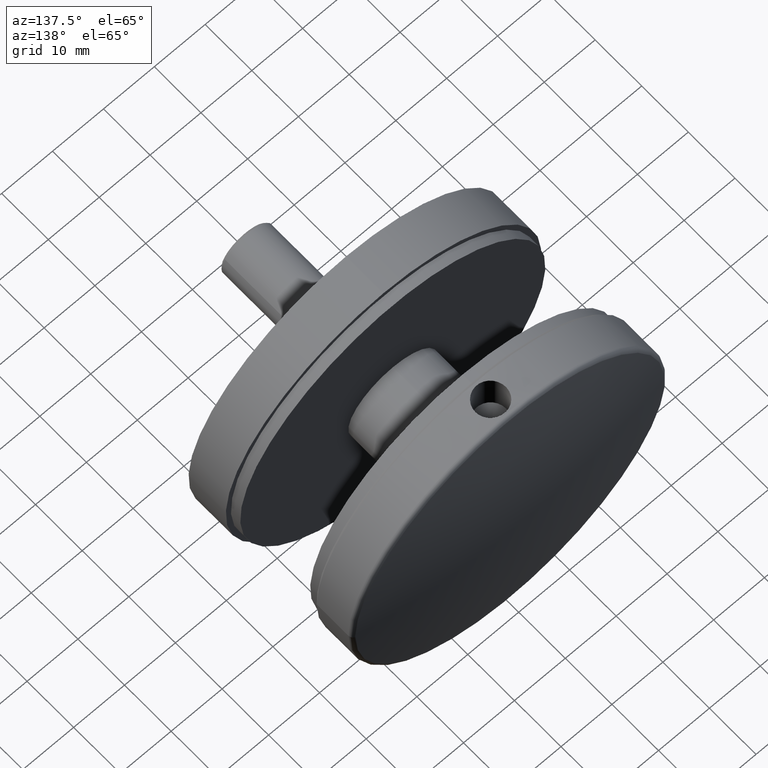
[diagram: clean part render]
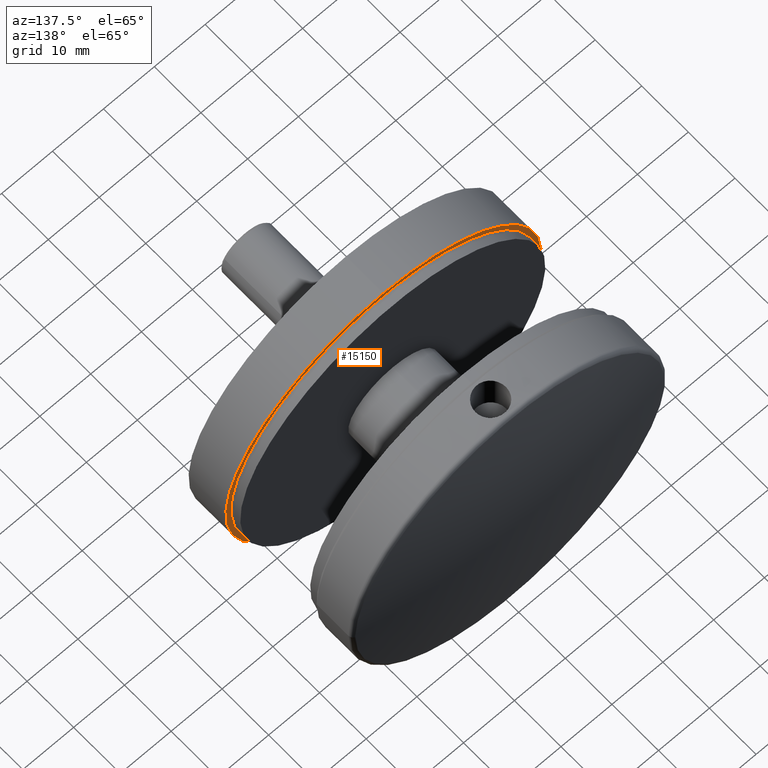
[diagram: same view with one face highlighted and labeled with its STEP entity id]
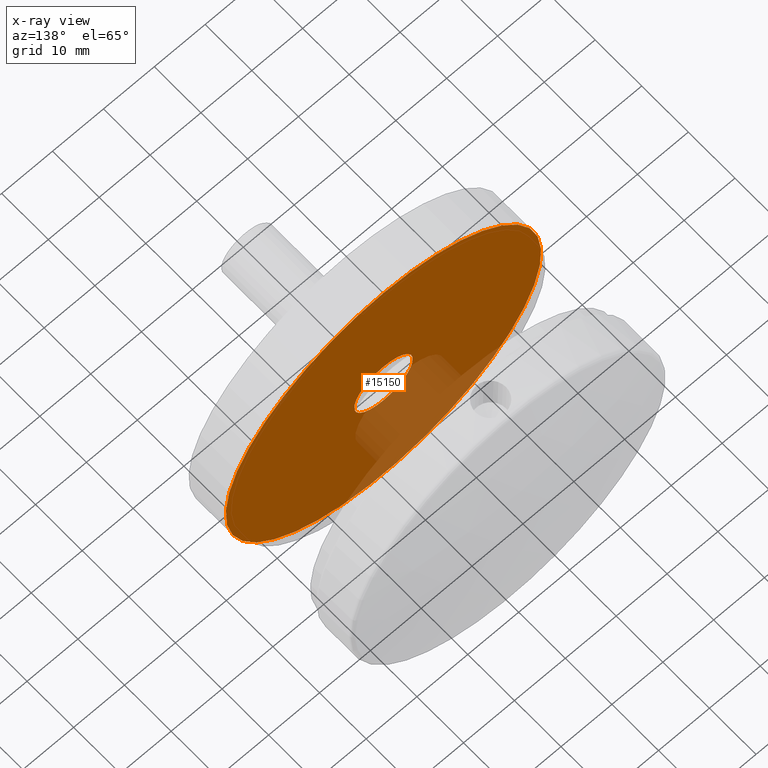
[diagram: x-ray of the same camera — body ghosted, the highlighted face saturated]
A machine part, auxiliary view. The second image highlights one B-rep face of the part: STEP entity #15150.
The next image is the same camera in x-ray: the body ghosted, the highlighted face saturated — about 17% of this face is hidden behind the body in this view.
In plain terms, the highlighted planar face has unit normal (0, 1, 0).
Its self-contained STEP definition (entity closure, byte-faithful):
#92 = DIRECTION ( 'NONE',  ( 0.000000000000000000, 0.000000000000000000, 1.000000000000000000 ) ) ;
#341 = FACE_OUTER_BOUND ( 'NONE', #13954, .T. ) ;
#587 = CIRCLE ( 'NONE', #11259, 31.00000000000000000 ) ;
#1088 = EDGE_LOOP ( 'NONE', ( #1945 ) ) ;
#1945 = ORIENTED_EDGE ( 'NONE', *, *, #18125, .F. ) ;
#3868 = CIRCLE ( 'NONE', #5962, 5.750000000000000000 ) ;
#4007 = CARTESIAN_POINT ( 'NONE',  ( -31.00000000000000000, 7.999999999999996447, 0.000000000000000000 ) ) ;
#5176 = VERTEX_POINT ( 'NONE', #12403 ) ;
#5529 = CARTESIAN_POINT ( 'NONE',  ( 0.000000000000000000, 7.999999999999996447, 5.750000000000000000 ) ) ;
#5606 = DIRECTION ( 'NONE',  ( -0.000000000000000000, 1.000000000000000000, 0.000000000000000000 ) ) ;
#5615 = CARTESIAN_POINT ( 'NONE',  ( 0.000000000000000000, 7.999999999999996447, 0.000000000000000000 ) ) ;
#5962 = AXIS2_PLACEMENT_3D ( 'NONE', #5615, #12605, #92 ) ;
#7423 = VERTEX_POINT ( 'NONE', #5529 ) ;
#9984 = AXIS2_PLACEMENT_3D ( 'NONE', #4007, #5606, #15510 ) ;
#11259 = AXIS2_PLACEMENT_3D ( 'NONE', #16133, #17561, #11918 ) ;
#11918 = DIRECTION ( 'NONE',  ( 0.000000000000000000, 0.000000000000000000, 1.000000000000000000 ) ) ;
#12403 = CARTESIAN_POINT ( 'NONE',  ( 0.000000000000000000, 7.999999999999996447, 31.00000000000000000 ) ) ;
#12605 = DIRECTION ( 'NONE',  ( -0.000000000000000000, 1.000000000000000000, -0.000000000000000000 ) ) ;
#12659 = PLANE ( 'NONE',  #9984 ) ;
#13256 = EDGE_CURVE ( 'NONE', #5176, #5176, #587, .T. ) ;
#13954 = EDGE_LOOP ( 'NONE', ( #14056 ) ) ;
#14056 = ORIENTED_EDGE ( 'NONE', *, *, #13256, .T. ) ;
#14451 = FACE_BOUND ( 'NONE', #1088, .T. ) ;
#15150 = ADVANCED_FACE ( 'NONE', ( #341, #14451 ), #12659, .T. ) ;
#15510 = DIRECTION ( 'NONE',  ( 0.000000000000000000, 0.000000000000000000, 1.000000000000000000 ) ) ;
#16133 = CARTESIAN_POINT ( 'NONE',  ( 0.000000000000000000, 7.999999999999996447, 0.000000000000000000 ) ) ;
#17561 = DIRECTION ( 'NONE',  ( -0.000000000000000000, 1.000000000000000000, -0.000000000000000000 ) ) ;
#18125 = EDGE_CURVE ( 'NONE', #7423, #7423, #3868, .T. ) ;